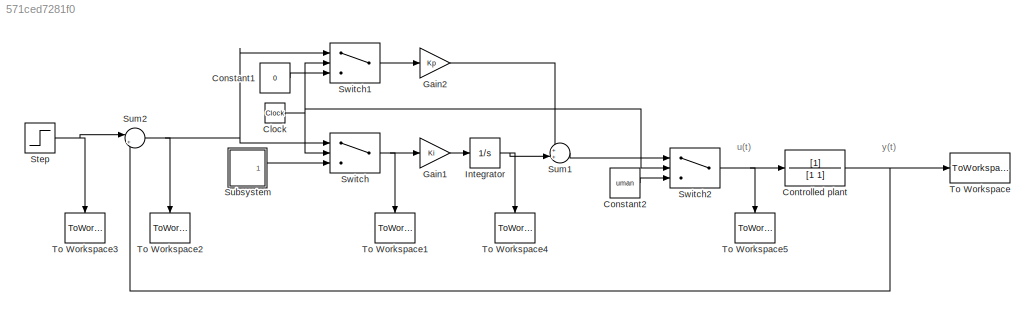
MODEL slx_571ced7281f0
KIND model
CONFIG AbsTol = auto
CONFIG EnableMultiTasking = off
CONFIG FixedStep = auto
CONFIG MaxStep = auto
CONFIG MinStep = auto
CONFIG RelTol = 1e-3
CONFIG SampleTimeConstraint = Unconstrained
CONFIG Solver = VariableStepAuto
CONFIG SolverName = VariableStepAuto
CONFIG StartTime = 0.0
CONFIG StopTime = 30
BLOCK [Clock] Clock
BLOCK [Constant] Constant1
  Value = 0
BLOCK [Constant] Constant2
  Value = uman
BLOCK [TransferFcn] Controlled plant
  Denominator = [1 1]
BLOCK [Gain] Gain1
  Gain = Ki
  OutDataTypeStr = Inherit: Inherit via internal rule
  ParamDataTypeStr = Inherit: Inherit via internal rule
  SaturateOnIntegerOverflow = off
BLOCK [Gain] Gain2
  Gain = Kp
  OutDataTypeStr = Inherit: Inherit via internal rule
  ParamDataTypeStr = Inherit: Inherit via internal rule
  SaturateOnIntegerOverflow = off
BLOCK [Integrator] Integrator
  Ports = [1, 1]
BLOCK [Step] Step
  SampleTime = 0
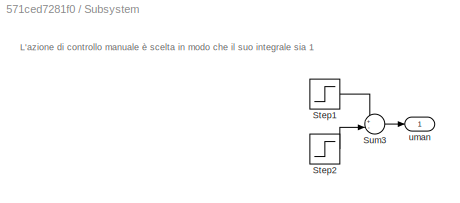
BLOCK [SubSystem] Subsystem
  Ports = [0, 1]
  RequestExecContextInheritance = off
BLOCK [Step] Subsystem/Step1
  After = 1/Kp
  SampleTime = 0
  Time = 0
BLOCK [Step] Subsystem/Step2
  After = 1/Kp
  SampleTime = 0
BLOCK [Sum] Subsystem/Sum3
  IconShape = round
  InputSameDT = off
  Inputs = +-
  OutDataTypeStr = Inherit: Inherit via internal rule
  Ports = [2, 1]
  SaturateOnIntegerOverflow = off
BLOCK [Outport] Subsystem/uman 
  IconDisplay = Port number
BLOCK [Sum] Sum1
  IconShape = round
  InputSameDT = off
  Inputs = ++|
  OutDataTypeStr = Inherit: Inherit via internal rule
  Ports = [2, 1]
  SaturateOnIntegerOverflow = off
BLOCK [Sum] Sum2
  IconShape = round
  InputSameDT = off
  Inputs = |+-
  OutDataTypeStr = Inherit: Inherit via internal rule
  Ports = [2, 1]
  SaturateOnIntegerOverflow = off
BLOCK [Switch] Switch
  InputSameDT = off
  SaturateOnIntegerOverflow = off
  Threshold = tswitch
BLOCK [Switch] Switch1
  InputSameDT = off
  SaturateOnIntegerOverflow = off
  Threshold = tswitch
BLOCK [Switch] Switch2
  InputSameDT = off
  SaturateOnIntegerOverflow = off
  Threshold = tswitch
BLOCK [ToWorkspace] To Workspace
  FixptAsFi = on
  MaxDataPoints = inf
  Ports = [1]
  SampleTime = -1
  SaveFormat = Structure With Time
  VariableName = y
BLOCK [ToWorkspace] To Workspace1
  FixptAsFi = on
  MaxDataPoints = inf
  Ports = [1]
  SampleTime = -1
  SaveFormat = Structure With Time
  VariableName = ei
BLOCK [ToWorkspace] To Workspace2
  FixptAsFi = on
  MaxDataPoints = inf
  Ports = [1]
  SampleTime = -1
  SaveFormat = Structure With Time
  VariableName = e
BLOCK [ToWorkspace] To Workspace3
  FixptAsFi = on
  MaxDataPoints = inf
  Ports = [1]
  SampleTime = -1
  SaveFormat = Structure With Time
  VariableName = r
BLOCK [ToWorkspace] To Workspace4
  FixptAsFi = on
  MaxDataPoints = inf
  Ports = [1]
  SampleTime = -1
  SaveFormat = Structure With Time
  VariableName = ui
BLOCK [ToWorkspace] To Workspace5
  FixptAsFi = on
  MaxDataPoints = inf
  Ports = [1]
  SampleTime = -1
  SaveFormat = Structure With Time
  VariableName = u
ANNOTATION (root): u(t)
ANNOTATION (root): y(t)
ANNOTATION Subsystem: L'azione di controllo manuale è scelta in modo che il suo integrale sia 1
NET Clock:1 -> Switch1:2, Switch2:2, Switch:2
LINE Constant1:1 -> Switch1:3
LINE Constant2:1 -> Switch2:3
NET Controlled plant:1 -> Sum2:2, To Workspace:1
LINE Gain1:1 -> Integrator:1
LINE Gain2:1 -> Sum1:1
NET Integrator:1 -> Sum1:2, To Workspace4:1
NET Step:1 -> Sum2:1, To Workspace3:1
LINE Subsystem/Step1:1 -> Subsystem/Sum3:1
LINE Subsystem/Step2:1 -> Subsystem/Sum3:2
LINE Subsystem/Sum3:1 -> Subsystem/uman :1
LINE Subsystem:1 -> Switch:3
LINE Sum1:1 -> Switch2:1
NET Sum2:1 -> Switch1:1, Switch:1, To Workspace2:1
LINE Switch1:1 -> Gain2:1
NET Switch2:1 -> Controlled plant:1, To Workspace5:1
NET Switch:1 -> Gain1:1, To Workspace1:1
note: NET lines group one-source signal fan-out (src -> all destinations, sorted); 1:1 wires keep LINE
